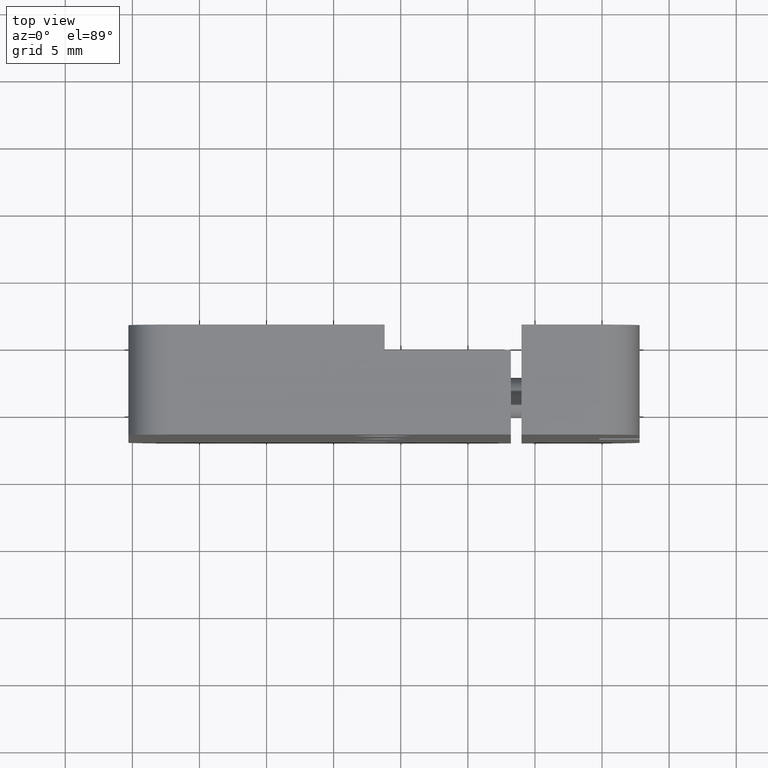
[diagram: clean part render]
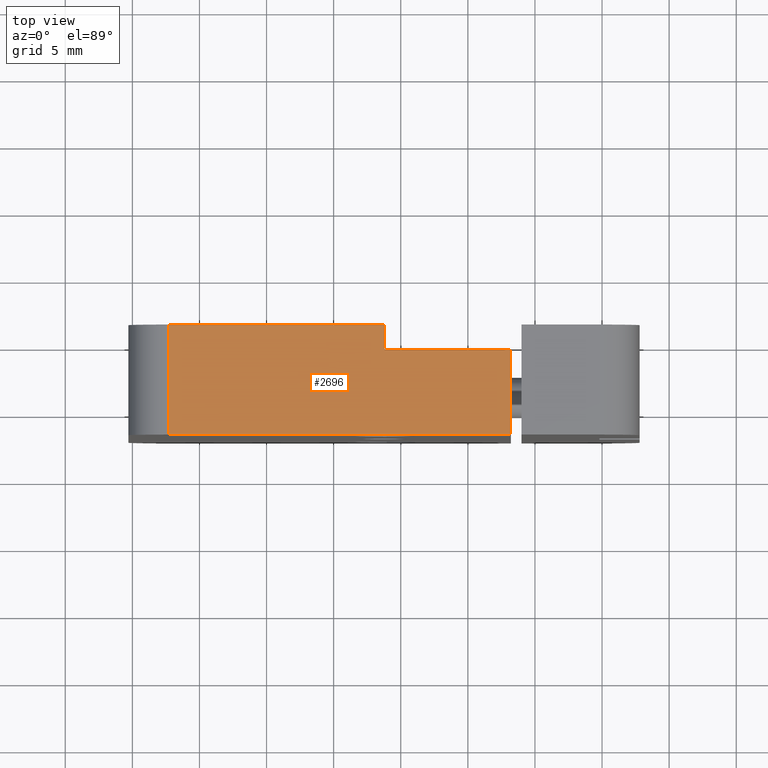
[diagram: same view with one face highlighted and labeled with its STEP entity id]
A machine part, top view. The second image highlights one B-rep face of the part: STEP entity #2696.
In plain terms, the highlighted planar face has unit normal (0, 0, -1).
Its self-contained STEP definition (entity closure, byte-faithful):
#60 = FACE_OUTER_BOUND ( 'NONE', #3734, .T. ) ;
#93 = LINE ( 'NONE', #3627, #332 ) ;
#176 = EDGE_CURVE ( 'NONE', #3806, #5175, #532, .T. ) ;
#332 = VECTOR ( 'NONE', #629, 1000.000000000000000 ) ;
#414 = EDGE_CURVE ( 'NONE', #1039, #1783, #3102, .T. ) ;
#446 = ORIENTED_EDGE ( 'NONE', *, *, #176, .F. ) ;
#532 = LINE ( 'NONE', #984, #4479 ) ;
#588 = LINE ( 'NONE', #4600, #4989 ) ;
#611 = CARTESIAN_POINT ( 'NONE',  ( 9.450000000000006395, 2.172500000000000320, 19.05000000000000071 ) ) ;
#629 = DIRECTION ( 'NONE',  ( 1.000000000000000000, 0.000000000000000000, 0.000000000000000000 ) ) ;
#984 = CARTESIAN_POINT ( 'NONE',  ( 9.450000000000006395, -4.127500000000000391, 19.05000000000000071 ) ) ;
#991 = EDGE_CURVE ( 'NONE', #5175, #4615, #1428, .T. ) ;
#1039 = VERTEX_POINT ( 'NONE', #5006 ) ;
#1078 = CARTESIAN_POINT ( 'NONE',  ( 0.04999999999998959443, 4.127500000000000391, 19.05000000000000071 ) ) ;
#1151 = DIRECTION ( 'NONE',  ( -1.000000000000000000, 0.000000000000000000, -0.000000000000000000 ) ) ;
#1181 = ORIENTED_EDGE ( 'NONE', *, *, #2330, .T. ) ;
#1277 = AXIS2_PLACEMENT_3D ( 'NONE', #2095, #3040, #1151 ) ;
#1428 = LINE ( 'NONE', #3447, #2986 ) ;
#1783 = VERTEX_POINT ( 'NONE', #6066 ) ;
#2095 = CARTESIAN_POINT ( 'NONE',  ( -15.87499999999997868, 4.127500000000000391, 19.05000000000000071 ) ) ;
#2145 = LINE ( 'NONE', #3188, #5057 ) ;
#2330 = EDGE_CURVE ( 'NONE', #1039, #4240, #2145, .T. ) ;
#2696 = ADVANCED_FACE ( 'NONE', ( #60 ), #5542, .F. ) ;
#2709 = ORIENTED_EDGE ( 'NONE', *, *, #6386, .T. ) ;
#2727 = EDGE_CURVE ( 'NONE', #1783, #3806, #93, .T. ) ;
#2986 = VECTOR ( 'NONE', #5448, 1000.000000000000000 ) ;
#3040 = DIRECTION ( 'NONE',  ( 0.000000000000000000, 0.000000000000000000, -1.000000000000000000 ) ) ;
#3102 = LINE ( 'NONE', #1078, #5982 ) ;
#3115 = ORIENTED_EDGE ( 'NONE', *, *, #991, .F. ) ;
#3135 = DIRECTION ( 'NONE',  ( 0.000000000000000000, -1.000000000000000000, 0.000000000000000000 ) ) ;
#3188 = CARTESIAN_POINT ( 'NONE',  ( 15.87499999999999645, 4.072500000000000675, 19.04999999999999716 ) ) ;
#3206 = CARTESIAN_POINT ( 'NONE',  ( -16.04999999999999716, -4.127500000000000391, 19.04999999999999716 ) ) ;
#3447 = CARTESIAN_POINT ( 'NONE',  ( 15.87499999999999645, -4.127500000000000391, 19.04999999999999716 ) ) ;
#3471 = ORIENTED_EDGE ( 'NONE', *, *, #2727, .F. ) ;
#3502 = CARTESIAN_POINT ( 'NONE',  ( -16.04999999999999716, 4.072500000000000675, 19.04999999999999716 ) ) ;
#3627 = CARTESIAN_POINT ( 'NONE',  ( -15.87499999999997868, 2.172500000000000320, 19.05000000000000071 ) ) ;
#3734 = EDGE_LOOP ( 'NONE', ( #1181, #2709, #3115, #446, #3471, #3955 ) ) ;
#3806 = VERTEX_POINT ( 'NONE', #611 ) ;
#3955 = ORIENTED_EDGE ( 'NONE', *, *, #414, .F. ) ;
#4128 = DIRECTION ( 'NONE',  ( -1.000000000000000000, 0.000000000000000000, 0.000000000000000000 ) ) ;
#4240 = VERTEX_POINT ( 'NONE', #3502 ) ;
#4479 = VECTOR ( 'NONE', #4581, 1000.000000000000000 ) ;
#4581 = DIRECTION ( 'NONE',  ( 0.000000000000000000, -1.000000000000000000, 0.000000000000000000 ) ) ;
#4600 = CARTESIAN_POINT ( 'NONE',  ( -16.05000000000000071, 4.127500000000000391, 19.05000000000000071 ) ) ;
#4615 = VERTEX_POINT ( 'NONE', #3206 ) ;
#4909 = CARTESIAN_POINT ( 'NONE',  ( 9.450000000000006395, -4.127500000000000391, 19.04999999999999716 ) ) ;
#4989 = VECTOR ( 'NONE', #3135, 1000.000000000000000 ) ;
#5006 = CARTESIAN_POINT ( 'NONE',  ( 0.04999999999998959443, 4.072500000000000675, 19.05000000000000071 ) ) ;
#5057 = VECTOR ( 'NONE', #4128, 1000.000000000000000 ) ;
#5175 = VERTEX_POINT ( 'NONE', #4909 ) ;
#5448 = DIRECTION ( 'NONE',  ( -1.000000000000000000, 0.000000000000000000, 0.000000000000000000 ) ) ;
#5536 = DIRECTION ( 'NONE',  ( -0.000000000000000000, -1.000000000000000000, -0.000000000000000000 ) ) ;
#5542 = PLANE ( 'NONE',  #1277 ) ;
#5982 = VECTOR ( 'NONE', #5536, 1000.000000000000000 ) ;
#6066 = CARTESIAN_POINT ( 'NONE',  ( 0.04999999999998959443, 2.172500000000000320, 19.05000000000000071 ) ) ;
#6386 = EDGE_CURVE ( 'NONE', #4240, #4615, #588, .T. ) ;